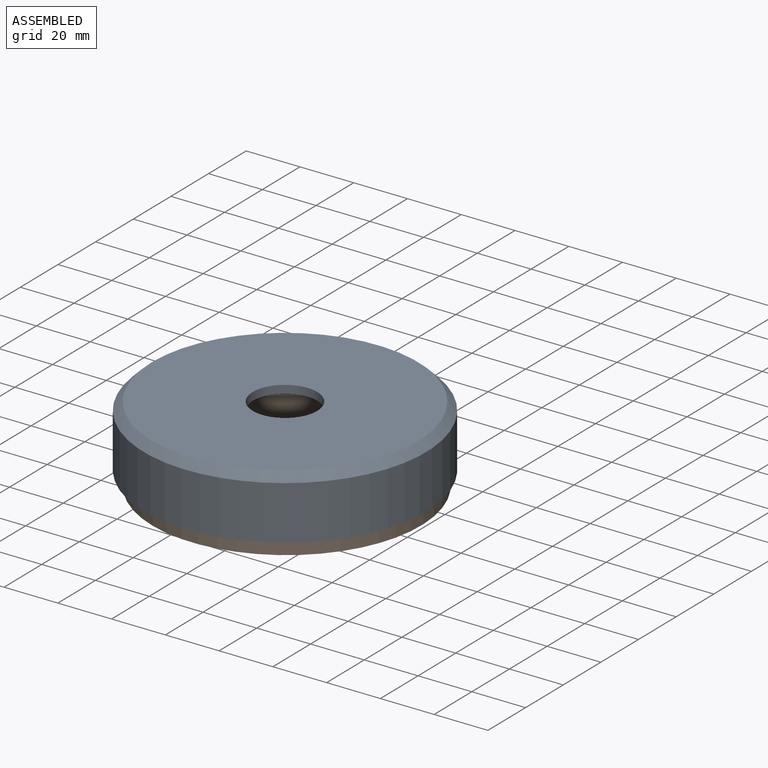
[diagram: assembled view]
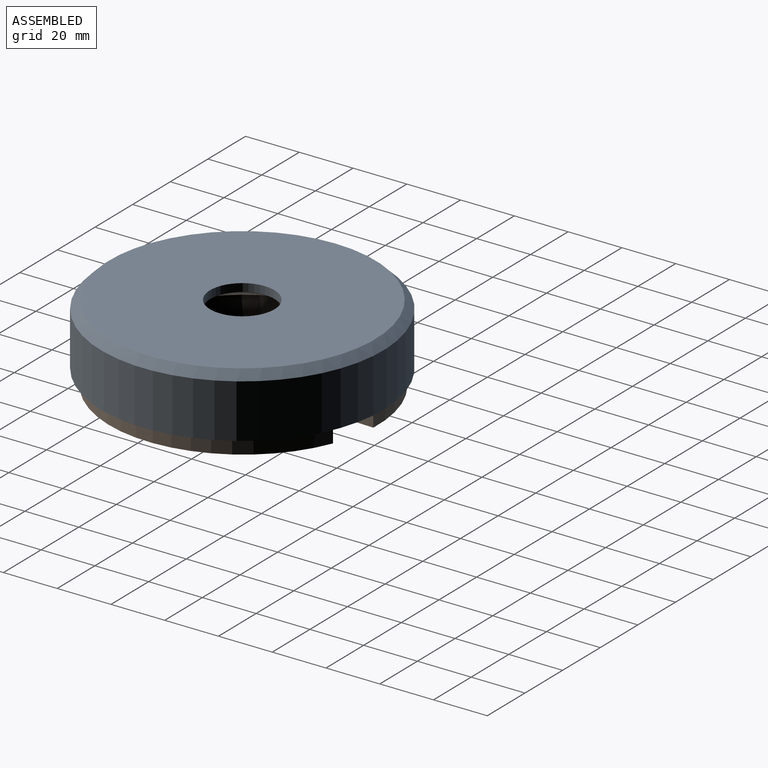
[diagram: assembled view, second angle]
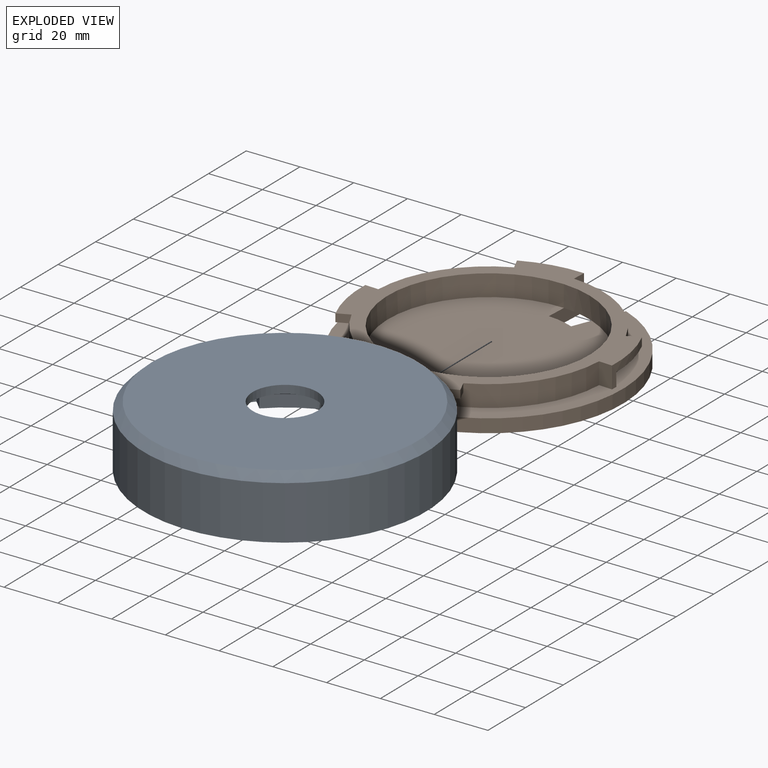
[diagram: exploded view]
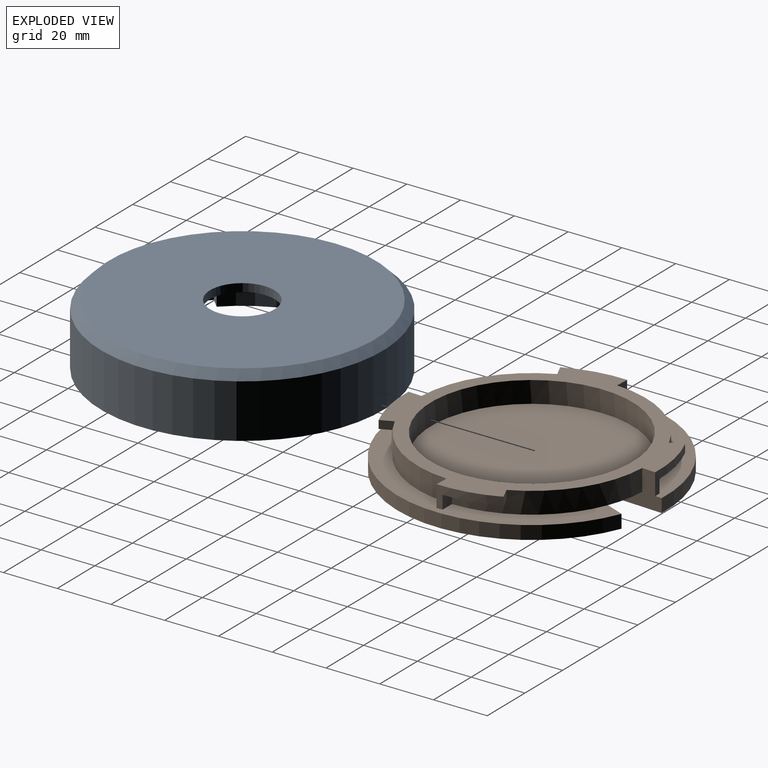
[diagram: exploded view, second angle]
ASSEMBLY  parts=2 mates=2
PART A: 23 faces, bbox 105x105x23 mm
  f0: cylinder r=12mm len=24mm, axis (0,0,-1), area 226.2mm2, adj f1,f2
  f1: plane 100x100mm, normal (0,0,1), area 7401.6mm2, adj f0,f3
  f2: plane 99x99mm, normal (0,0,-1), area 7245.3mm2, adj f0,f22
  f3: cylinder r=50mm len=100mm, axis (0,0,-1), area 5497.8mm2, adj f1,f5,f6,f7,f9,f10,f12,f13
  f4: cylinder r=52.5mm len=105mm, axis (0,0,-1), area 6597.3mm2, adj f5,f22
  f5: plane 105x105mm, normal (0,0,1), area 1551.2mm2, adj f3,f4,f6,f7,f8,f10,f11,f12
  f6: plane 5x3.54mm, normal (0.71,-0.71,0), area 25mm2, adj f3,f5,f8,f9
  f7: plane 5x5mm, normal (-1,0,0), area 25mm2, adj f3,f5,f8,f9
  f8: cylinder r=45mm len=31.82mm, axis (0,0,-1), area 176.7mm2, adj f5,f6,f7,f9
  f9: plane 35.36x18.18mm, normal (0,0,-1), area 186.5mm2, adj f3,f6,f7,f8
  f10: plane 5x5mm, normal (0,-1,0), area 25mm2, adj f3,f5,f11,f13
  f11: cylinder r=45mm len=31.82mm, axis (0,0,-1), area 176.7mm2, adj f5,f10,f12,f13
  f12: plane 5x3.54mm, normal (0.71,0.71,0), area 25mm2, adj f3,f5,f11,f13
  f13: plane 35.36x18.18mm, normal (0,0,-1), area 186.5mm2, adj f3,f10,f11,f12
  f14: plane 5x5mm, normal (1,0,0), area 25mm2, adj f3,f5,f15,f17
  f15: cylinder r=45mm len=31.82mm, axis (0,0,-1), area 176.7mm2, adj f5,f14,f16,f17
  f16: plane 5x3.54mm, normal (-0.71,0.71,0), area 25mm2, adj f3,f5,f15,f17
  f17: plane 35.36x18.18mm, normal (0,0,-1), area 186.5mm2, adj f3,f14,f15,f16
  f18: plane 5x5mm, normal (0,1,0), area 25mm2, adj f3,f5,f19,f21
  f19: cylinder r=45mm len=31.82mm, axis (0,0,-1), area 176.7mm2, adj f5,f18,f20,f21
  f20: plane 5x3.54mm, normal (-0.71,-0.71,0), area 25mm2, adj f3,f5,f19,f21
  f21: plane 35.36x18.18mm, normal (0,0,-1), area 186.5mm2, adj f3,f18,f19,f20
  f22: cone r=52.5mm half-angle=45deg, axis (0,0,1), area 1359.5mm2, adj f2,f4
PART B: 33 faces, bbox 100x100x13 mm
  f0: plane 75x75mm, normal (0,0,1), area 4333.1mm2, adj f12,f18,f31,f32
  f1: plane 100x100mm, normal (0,0,-1), area 7586.1mm2, adj f2,f18,f31,f32
  f2: cylinder r=50mm len=100mm, axis (0,0,1), area 1487.1mm2, adj f1,f3,f18,f32
  f3: plane 100x100mm, normal (0,0,1), area 2020.9mm2, adj f2,f4,f5,f6,f7,f8,f9,f10
  f4: plane 5x4.99mm, normal (1,0.05,0), area 25mm2, adj f3,f5,f21,f29
  f5: cylinder r=42.5mm len=42.45mm, axis (0,0,-1), area 463.5mm2, adj f3,f4,f13,f14,f28,f29
  f6: plane 5x4.99mm, normal (0.05,-1,0), area 25mm2, adj f3,f7,f19,f27
  f7: cylinder r=42.5mm len=42.45mm, axis (0,0,-1), area 463.5mm2, adj f3,f6,f13,f20,f26,f27
  f8: plane 5x4.99mm, normal (-1,-0.05,0), area 25mm2, adj f3,f9,f17,f25
  f9: cylinder r=42.5mm len=42.45mm, axis (0,0,-1), area 463.5mm2, adj f3,f8,f13,f18,f24,f25,f30
  f10: plane 5x4.99mm, normal (-0.05,1,0), area 25mm2, adj f3,f11,f15,f23
  f11: cylinder r=42.5mm len=42.45mm, axis (0,0,-1), area 463.5mm2, adj f3,f10,f13,f16,f22,f23
  f12: cylinder r=37.5mm len=75mm, axis (0,0,-1), area 1885mm2, adj f0,f13,f30
  f13: plane 95x95mm, normal (0,0,1), area 1684.2mm2, adj f5,f7,f9,f11,f12,f14,f15,f16
  f14: plane 8x5mm, normal (0,-1,0), area 40mm2, adj f3,f5,f13,f15
  f15: cylinder r=47.5mm len=21.73mm, axis (0,0,-1), area 78.9mm2, adj f3,f10,f13,f14,f22,f23
  f16: plane 8x5mm, normal (1,0,0), area 40mm2, adj f3,f11,f13,f17
  f17: cylinder r=47.5mm len=21.73mm, axis (0,0,-1), area 78.9mm2, adj f3,f8,f13,f16,f24,f25
  f18: plane 20x13mm, normal (0,1,0), area 140mm2, adj f0,f1,f2,f3,f9,f13,f19,f30
  f19: cylinder r=47.5mm len=21.73mm, axis (0,0,-1), area 78.9mm2, adj f3,f6,f13,f18,f26,f27
  f20: plane 8x5mm, normal (-1,0,0), area 40mm2, adj f3,f7,f13,f21
  f21: cylinder r=47.5mm len=21.73mm, axis (0,0,-1), area 78.9mm2, adj f3,f4,f13,f20,f28,f29
  f22: plane 4.45x3mm, normal (-0.46,0.89,0), area 15mm2, adj f11,f13,f15,f23
  f23: plane 19.73x9.65mm, normal (0,0,-1), area 96.3mm2, adj f10,f11,f15,f22
  f24: plane 4.45x3mm, normal (-0.89,-0.46,0), area 15mm2, adj f9,f13,f17,f25
  f25: plane 19.73x9.65mm, normal (0,0,-1), area 96.3mm2, adj f8,f9,f17,f24
  f26: plane 4.45x3mm, normal (0.46,-0.89,0), area 15mm2, adj f7,f13,f19,f27
  f27: plane 19.73x9.65mm, normal (0,0,-1), area 96.3mm2, adj f6,f7,f19,f26
  f28: plane 4.45x3mm, normal (0.89,0.46,0), area 15mm2, adj f5,f13,f21,f29
  f29: plane 19.73x9.65mm, normal (0,0,-1), area 96.3mm2, adj f4,f5,f21,f28
  f30: plane 13.97x7.08mm, normal (0,0,-1), area 67mm2, adj f9,f12,f18,f32
  f31: cylinder r=30mm len=9.86mm, axis (0,0,1), area 50.2mm2, adj f0,f1,f18,f32
  f32: plane 18.89x6.57mm, normal (-0.33,-0.94,0), area 100mm2, adj f0,f1,f2,f3,f30,f31
PLACE A rot(axis=(0,1,0),180deg) t=(11.21,144.69,37.27)mm
PLACE B rot(axis=(0,0,-1),92.7deg) t=(11.44,145.27,13.75)mm
MATE parallel B.f8 <-> A.f10  axis (0,1,0) through (56.44,145.27,16.25)mm
MATE parallel B.f2 <-> A.f0  axis (0,0,1) through (11.44,145.27,11.25)mm
